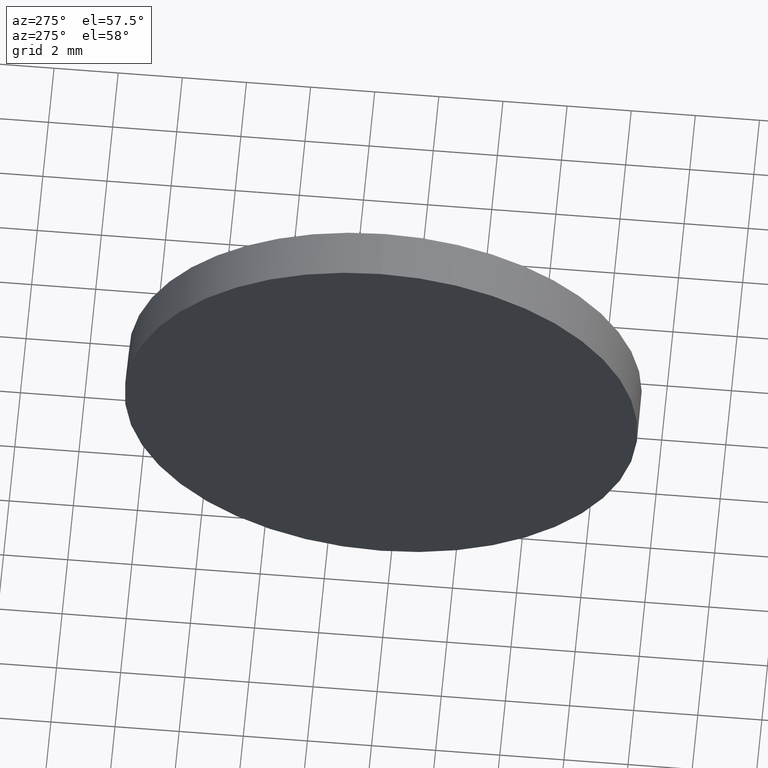
[diagram: clean part render]
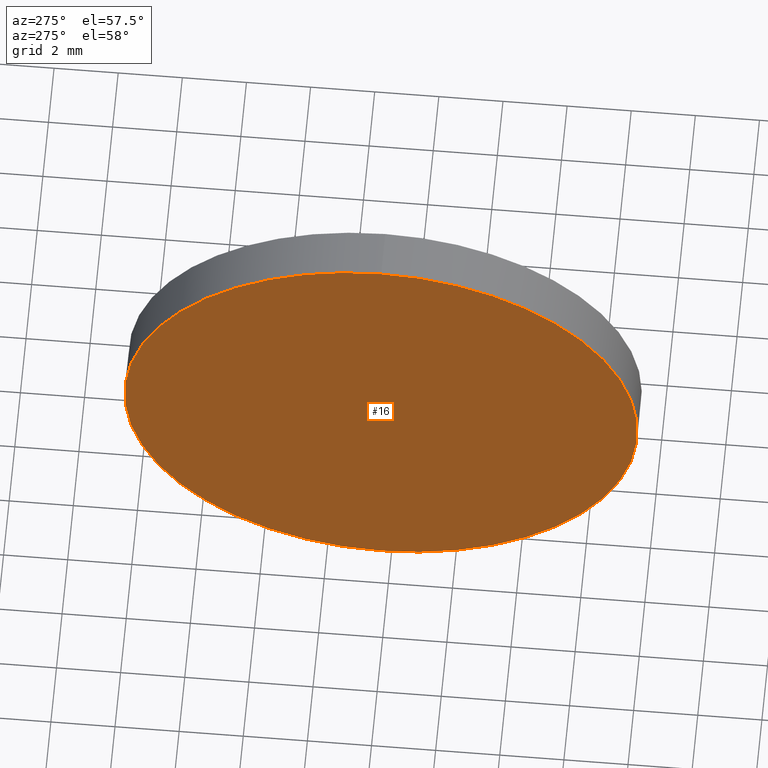
[diagram: same view with one face highlighted and labeled with its STEP entity id]
A machine part, auxiliary view. The second image highlights one B-rep face of the part: STEP entity #16.
In plain terms, the highlighted planar face has unit normal (1, 0, 0).
Its self-contained STEP definition (entity closure, byte-faithful):
#12 = DIRECTION ( 'NONE',  ( -1.000000000000000000, -0.0000000000000000000, -0.0000000000000000000 ) ) ;
#16 = ADVANCED_FACE ( 'NONE', ( #103 ), #91, .F. ) ;
#24 = EDGE_CURVE ( 'NONE', #127, #68, #168, .T. ) ;
#27 = AXIS2_PLACEMENT_3D ( 'NONE', #143, #12, #28 ) ;
#28 = DIRECTION ( 'NONE',  ( 0.0000000000000000000, 0.0000000000000000000, 1.000000000000000000 ) ) ;
#35 = CARTESIAN_POINT ( 'NONE',  ( 430.9606144049649300, 100.3116985881700900, 0.0000000000000000000 ) ) ;
#38 = DIRECTION ( 'NONE',  ( 0.0000000000000000000, 0.0000000000000000000, -1.000000000000000000 ) ) ;
#41 = CARTESIAN_POINT ( 'NONE',  ( 430.9606144049649300, 100.3116985881700900, -8.000000000000007100 ) ) ;
#67 = DIRECTION ( 'NONE',  ( 1.000000000000000000, 0.0000000000000000000, 0.0000000000000000000 ) ) ;
#68 = VERTEX_POINT ( 'NONE', #173 ) ;
#80 = EDGE_LOOP ( 'NONE', ( #108, #94 ) ) ;
#91 = PLANE ( 'NONE',  #182 ) ;
#94 = ORIENTED_EDGE ( 'NONE', *, *, #24, .T. ) ;
#103 = FACE_OUTER_BOUND ( 'NONE', #80, .T. ) ;
#104 = DIRECTION ( 'NONE',  ( -1.000000000000000000, -0.0000000000000000000, -0.0000000000000000000 ) ) ;
#105 = CARTESIAN_POINT ( 'NONE',  ( 430.9606144049649300, 100.3116985881700900, 0.0000000000000000000 ) ) ;
#108 = ORIENTED_EDGE ( 'NONE', *, *, #122, .T. ) ;
#109 = AXIS2_PLACEMENT_3D ( 'NONE', #35, #104, #121 ) ;
#121 = DIRECTION ( 'NONE',  ( 0.0000000000000000000, 0.0000000000000000000, 1.000000000000000000 ) ) ;
#122 = EDGE_CURVE ( 'NONE', #68, #127, #139, .T. ) ;
#127 = VERTEX_POINT ( 'NONE', #41 ) ;
#139 = CIRCLE ( 'NONE', #27, 8.000000000000007100 ) ;
#143 = CARTESIAN_POINT ( 'NONE',  ( 430.9606144049649300, 100.3116985881700900, 0.0000000000000000000 ) ) ;
#168 = CIRCLE ( 'NONE', #109, 8.000000000000007100 ) ;
#173 = CARTESIAN_POINT ( 'NONE',  ( 430.9606144049649300, 100.3116985881700900, 8.000000000000007100 ) ) ;
#182 = AXIS2_PLACEMENT_3D ( 'NONE', #105, #67, #38 ) ;